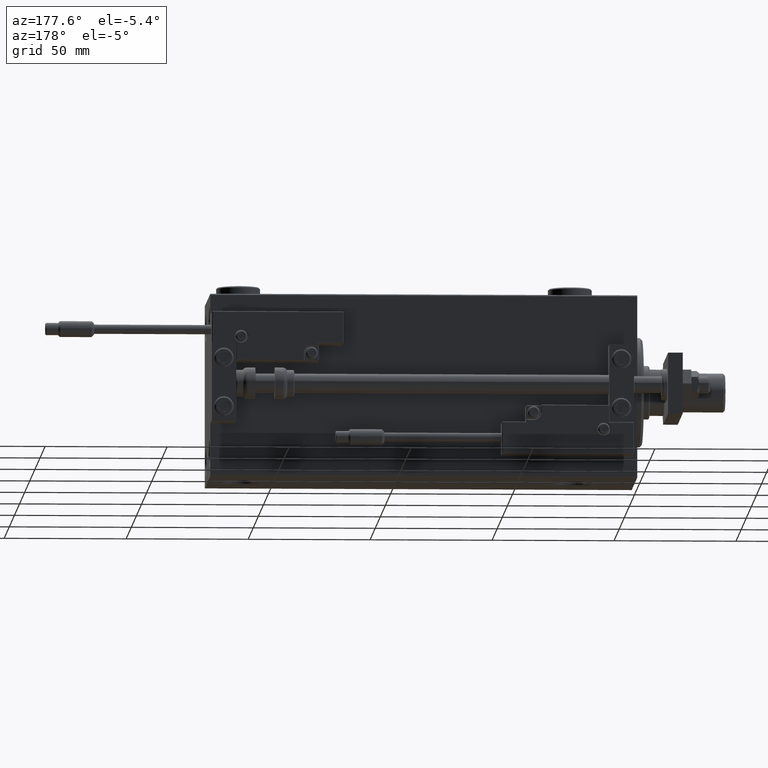
[diagram: clean part render]
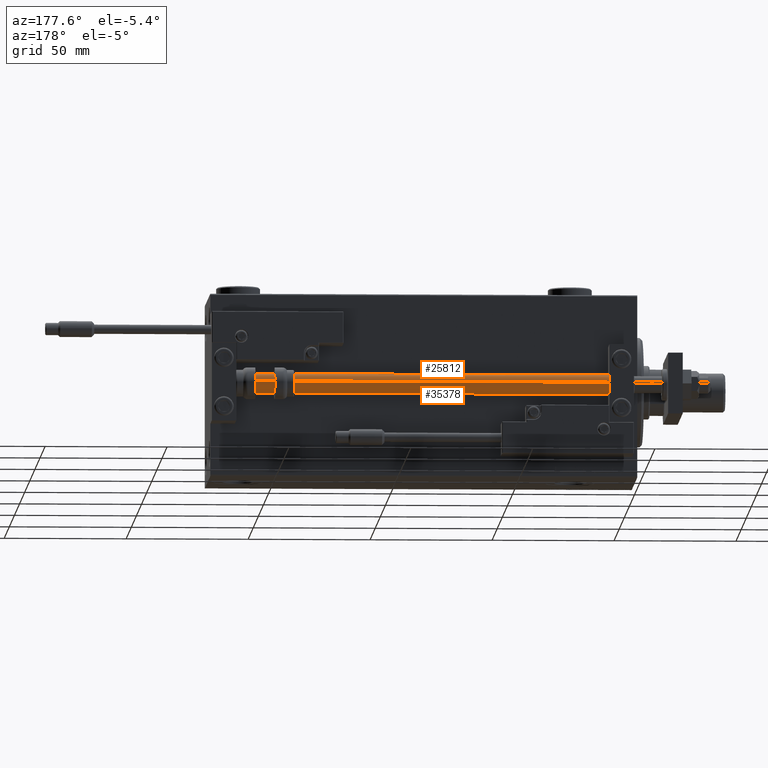
[diagram: same view with one multi-face feature highlighted, each face labeled with its STEP entity id]
A machine part, auxiliary view. The highlighted faces form ONE feature: a constant-radius fillet chain: 2 tangent blend faces with common blend radius 4 mm. The faces share edges in the B-rep.
Their STEP definitions:
[1] entity #25812 (Cylinder):
#851 = VECTOR ( 'NONE', #29887, 1000.000000000000000 ) ;
#1283 = VERTEX_POINT ( 'NONE', #9134 ) ;
#1768 = CARTESIAN_POINT ( 'NONE',  ( 4.000000000000000000, 4.898587196589412829E-16, 2.000000000000029310 ) ) ;
#3074 = ORIENTED_EDGE ( 'NONE', *, *, #14804, .F. ) ;
#3383 = DIRECTION ( 'NONE',  ( 1.000000000000000000, 0.000000000000000000, 0.000000000000000000 ) ) ;
#4202 = CARTESIAN_POINT ( 'NONE',  ( 0.000000000000000000, 0.000000000000000000, 175.0000000000000000 ) ) ;
#4349 = CIRCLE ( 'NONE', #25845, 4.000000000000000000 ) ;
#6307 = EDGE_LOOP ( 'NONE', ( #3074, #9095, #11133, #12493 ) ) ;
#8243 = DIRECTION ( 'NONE',  ( -1.000000000000000000, 0.000000000000000000, 0.000000000000000000 ) ) ;
#8887 = CARTESIAN_POINT ( 'NONE',  ( -4.000000000000000000, 0.000000000000000000, 175.0000000000000000 ) ) ;
#9095 = ORIENTED_EDGE ( 'NONE', *, *, #34165, .T. ) ;
#9134 = CARTESIAN_POINT ( 'NONE',  ( 4.000000000000000000, 4.898587196589412829E-16, 175.0000000000000000 ) ) ;
#10790 = CARTESIAN_POINT ( 'NONE',  ( 0.000000000000000000, 0.000000000000000000, 175.0000000000000000 ) ) ;
#11133 = ORIENTED_EDGE ( 'NONE', *, *, #21372, .T. ) ;
#12493 = ORIENTED_EDGE ( 'NONE', *, *, #20324, .F. ) ;
#12913 = LINE ( 'NONE', #8887, #851 ) ;
#14176 = CARTESIAN_POINT ( 'NONE',  ( -4.000000000000000000, 0.000000000000000000, 175.0000000000000000 ) ) ;
#14712 = CARTESIAN_POINT ( 'NONE',  ( 0.000000000000000000, 0.000000000000000000, 2.000000000000029310 ) ) ;
#14804 = EDGE_CURVE ( 'NONE', #1283, #34962, #17853, .T. ) ;
#17311 = AXIS2_PLACEMENT_3D ( 'NONE', #4202, #45427, #8243 ) ;
#17853 = CIRCLE ( 'NONE', #53111, 4.000000000000000000 ) ;
#20324 = EDGE_CURVE ( 'NONE', #34962, #51739, #12913, .T. ) ;
#21372 = EDGE_CURVE ( 'NONE', #39297, #51739, #4349, .T. ) ;
#25812 = ADVANCED_FACE ( 'NONE', ( #41392 ), #44903, .T. ) ;
#25845 = AXIS2_PLACEMENT_3D ( 'NONE', #14712, #36528, #3383 ) ;
#27363 = VECTOR ( 'NONE', #49084, 1000.000000000000000 ) ;
#29887 = DIRECTION ( 'NONE',  ( -0.000000000000000000, -0.000000000000000000, -1.000000000000000000 ) ) ;
#30475 = DIRECTION ( 'NONE',  ( 0.000000000000000000, 0.000000000000000000, 1.000000000000000000 ) ) ;
#31885 = CARTESIAN_POINT ( 'NONE',  ( -4.000000000000000000, 0.000000000000000000, 2.000000000000029310 ) ) ;
#34165 = EDGE_CURVE ( 'NONE', #1283, #39297, #40753, .T. ) ;
#34962 = VERTEX_POINT ( 'NONE', #14176 ) ;
#35050 = DIRECTION ( 'NONE',  ( 1.000000000000000000, 0.000000000000000000, 0.000000000000000000 ) ) ;
#36528 = DIRECTION ( 'NONE',  ( -0.000000000000000000, -0.000000000000000000, 1.000000000000000000 ) ) ;
#39297 = VERTEX_POINT ( 'NONE', #1768 ) ;
#40753 = LINE ( 'NONE', #44791, #27363 ) ;
#41392 = FACE_OUTER_BOUND ( 'NONE', #6307, .T. ) ;
#44791 = CARTESIAN_POINT ( 'NONE',  ( 4.000000000000000000, 4.898587196589412829E-16, 175.0000000000000000 ) ) ;
#44903 = CYLINDRICAL_SURFACE ( 'NONE', #17311, 4.000000000000000000 ) ;
#45427 = DIRECTION ( 'NONE',  ( -0.000000000000000000, -0.000000000000000000, -1.000000000000000000 ) ) ;
#49084 = DIRECTION ( 'NONE',  ( -0.000000000000000000, -0.000000000000000000, -1.000000000000000000 ) ) ;
#51739 = VERTEX_POINT ( 'NONE', #31885 ) ;
#53111 = AXIS2_PLACEMENT_3D ( 'NONE', #10790, #30475, #35050 ) ;
[2] entity #35378 (Cylinder):
#509 = DIRECTION ( 'NONE',  ( -0.000000000000000000, -0.000000000000000000, 1.000000000000000000 ) ) ;
#851 = VECTOR ( 'NONE', #29887, 1000.000000000000000 ) ;
#1283 = VERTEX_POINT ( 'NONE', #9134 ) ;
#1768 = CARTESIAN_POINT ( 'NONE',  ( 4.000000000000000000, 4.898587196589412829E-16, 2.000000000000029310 ) ) ;
#4447 = EDGE_CURVE ( 'NONE', #34962, #1283, #35629, .T. ) ;
#4979 = AXIS2_PLACEMENT_3D ( 'NONE', #45502, #509, #36619 ) ;
#7715 = DIRECTION ( 'NONE',  ( 0.000000000000000000, 0.000000000000000000, 1.000000000000000000 ) ) ;
#8379 = CIRCLE ( 'NONE', #4979, 4.000000000000000000 ) ;
#8887 = CARTESIAN_POINT ( 'NONE',  ( -4.000000000000000000, 0.000000000000000000, 175.0000000000000000 ) ) ;
#9134 = CARTESIAN_POINT ( 'NONE',  ( 4.000000000000000000, 4.898587196589412829E-16, 175.0000000000000000 ) ) ;
#9314 = ORIENTED_EDGE ( 'NONE', *, *, #31659, .T. ) ;
#10281 = ORIENTED_EDGE ( 'NONE', *, *, #4447, .F. ) ;
#12913 = LINE ( 'NONE', #8887, #851 ) ;
#14176 = CARTESIAN_POINT ( 'NONE',  ( -4.000000000000000000, 0.000000000000000000, 175.0000000000000000 ) ) ;
#14844 = DIRECTION ( 'NONE',  ( -0.000000000000000000, -0.000000000000000000, -1.000000000000000000 ) ) ;
#18101 = ORIENTED_EDGE ( 'NONE', *, *, #34165, .F. ) ;
#20324 = EDGE_CURVE ( 'NONE', #34962, #51739, #12913, .T. ) ;
#20391 = CARTESIAN_POINT ( 'NONE',  ( 0.000000000000000000, 0.000000000000000000, 175.0000000000000000 ) ) ;
#27363 = VECTOR ( 'NONE', #49084, 1000.000000000000000 ) ;
#28332 = AXIS2_PLACEMENT_3D ( 'NONE', #31540, #14844, #49302 ) ;
#29887 = DIRECTION ( 'NONE',  ( -0.000000000000000000, -0.000000000000000000, -1.000000000000000000 ) ) ;
#31540 = CARTESIAN_POINT ( 'NONE',  ( 0.000000000000000000, 0.000000000000000000, 175.0000000000000000 ) ) ;
#31659 = EDGE_CURVE ( 'NONE', #51739, #39297, #8379, .T. ) ;
#31885 = CARTESIAN_POINT ( 'NONE',  ( -4.000000000000000000, 0.000000000000000000, 2.000000000000029310 ) ) ;
#34165 = EDGE_CURVE ( 'NONE', #1283, #39297, #40753, .T. ) ;
#34758 = ORIENTED_EDGE ( 'NONE', *, *, #20324, .T. ) ;
#34962 = VERTEX_POINT ( 'NONE', #14176 ) ;
#35316 = FACE_OUTER_BOUND ( 'NONE', #42163, .T. ) ;
#35378 = ADVANCED_FACE ( 'NONE', ( #35316 ), #51746, .T. ) ;
#35629 = CIRCLE ( 'NONE', #42523, 4.000000000000000000 ) ;
#36619 = DIRECTION ( 'NONE',  ( 1.000000000000000000, 0.000000000000000000, 0.000000000000000000 ) ) ;
#39297 = VERTEX_POINT ( 'NONE', #1768 ) ;
#40753 = LINE ( 'NONE', #44791, #27363 ) ;
#40875 = DIRECTION ( 'NONE',  ( 1.000000000000000000, 0.000000000000000000, 0.000000000000000000 ) ) ;
#42163 = EDGE_LOOP ( 'NONE', ( #18101, #10281, #34758, #9314 ) ) ;
#42523 = AXIS2_PLACEMENT_3D ( 'NONE', #20391, #7715, #40875 ) ;
#44791 = CARTESIAN_POINT ( 'NONE',  ( 4.000000000000000000, 4.898587196589412829E-16, 175.0000000000000000 ) ) ;
#45502 = CARTESIAN_POINT ( 'NONE',  ( 0.000000000000000000, 0.000000000000000000, 2.000000000000029310 ) ) ;
#49084 = DIRECTION ( 'NONE',  ( -0.000000000000000000, -0.000000000000000000, -1.000000000000000000 ) ) ;
#49302 = DIRECTION ( 'NONE',  ( -1.000000000000000000, 0.000000000000000000, 0.000000000000000000 ) ) ;
#51739 = VERTEX_POINT ( 'NONE', #31885 ) ;
#51746 = CYLINDRICAL_SURFACE ( 'NONE', #28332, 4.000000000000000000 ) ;